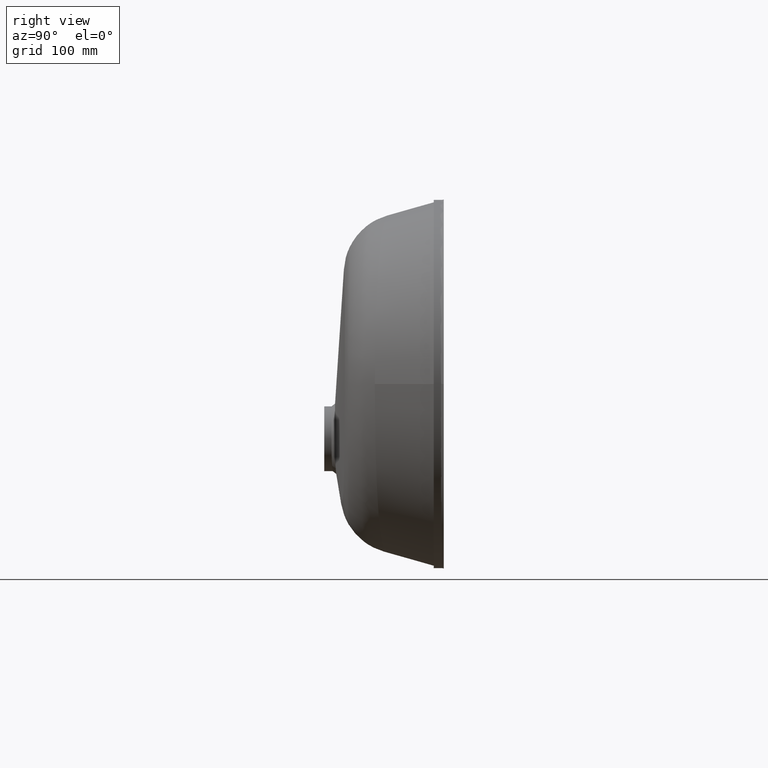
[diagram: clean part render]
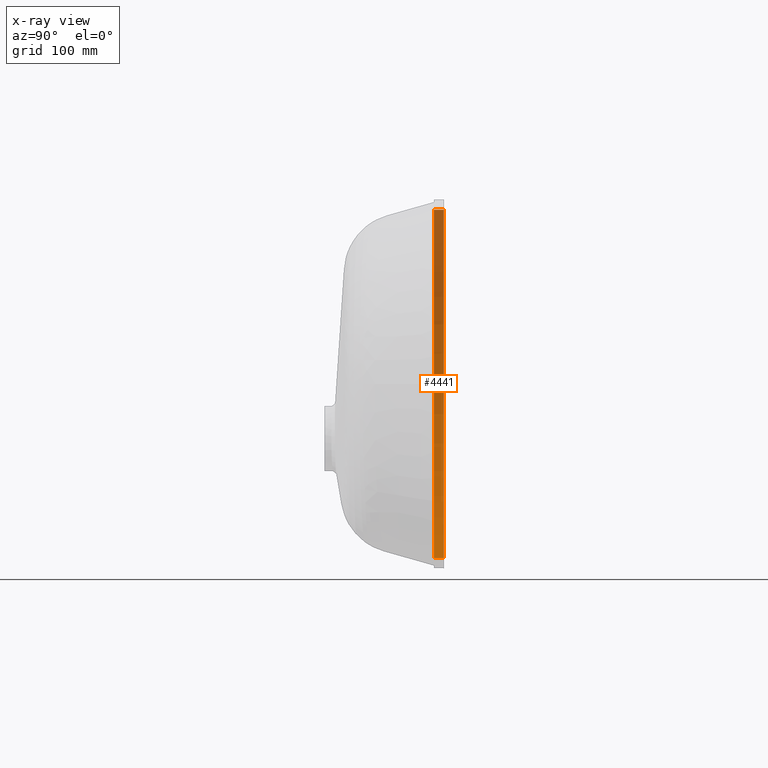
[diagram: x-ray — body ghosted, one internal face saturated and labeled with its STEP entity id]
A machine part, right view, then the same camera in x-ray: the body is ghosted and one INTERNAL B-rep face — a face not visible from any outside direction — is saturated and labeled: STEP entity #4441.
In plain terms, the highlighted cylindrical surface (partial cylindrical patch) has radius 175 mm, axis along (0, 1, 0).
Its self-contained STEP definition (entity closure, byte-faithful):
#1 = AXIS2_PLACEMENT_3D ( 'NONE', #11314, #4884, #12389 ) ;
#814 = ORIENTED_EDGE ( 'NONE', *, *, #9954, .F. ) ;
#1432 = EDGE_CURVE ( 'NONE', #1788, #6149, #4792, .T. ) ;
#1782 = CARTESIAN_POINT ( 'NONE',  ( -125.0000000000000300, -10.00000000000000000, 175.0000000000000300 ) ) ;
#1788 = VERTEX_POINT ( 'NONE', #5051 ) ;
#2682 = AXIS2_PLACEMENT_3D ( 'NONE', #12991, #13044, #5488 ) ;
#2945 = DIRECTION ( 'NONE',  ( 0.0000000000000000000, 1.000000000000000000, 0.0000000000000000000 ) ) ;
#3207 = AXIS2_PLACEMENT_3D ( 'NONE', #9378, #2945, #10452 ) ;
#3337 = CARTESIAN_POINT ( 'NONE',  ( -125.0000000000000300, -10.00000000000000000, 175.0000000000000300 ) ) ;
#3742 = EDGE_CURVE ( 'NONE', #7996, #1788, #12013, .T. ) ;
#4418 = DIRECTION ( 'NONE',  ( 0.0000000000000000000, 1.000000000000000000, 0.0000000000000000000 ) ) ;
#4441 = ADVANCED_FACE ( 'NONE', ( #8466 ), #13837, .F. ) ;
#4792 = CIRCLE ( 'NONE', #3207, 175.0000000000000300 ) ;
#4884 = DIRECTION ( 'NONE',  ( 0.0000000000000000000, 1.000000000000000000, 0.0000000000000000000 ) ) ;
#5051 = CARTESIAN_POINT ( 'NONE',  ( -125.0000000000000300, 0.0000000000000000000, -175.0000000000000300 ) ) ;
#5261 = CARTESIAN_POINT ( 'NONE',  ( -125.0000000000000300, -10.00000000000000000, -175.0000000000000300 ) ) ;
#5488 = DIRECTION ( 'NONE',  ( 0.0000000000000000000, 0.0000000000000000000, 1.000000000000000000 ) ) ;
#5979 = VECTOR ( 'NONE', #4418, 1000.000000000000000 ) ;
#6149 = VERTEX_POINT ( 'NONE', #11236 ) ;
#6312 = LINE ( 'NONE', #3337, #5979 ) ;
#6838 = CARTESIAN_POINT ( 'NONE',  ( -125.0000000000000300, -10.00000000000000000, -175.0000000000000300 ) ) ;
#7911 = DIRECTION ( 'NONE',  ( 0.0000000000000000000, 1.000000000000000000, 0.0000000000000000000 ) ) ;
#7996 = VERTEX_POINT ( 'NONE', #5261 ) ;
#8413 = EDGE_CURVE ( 'NONE', #11393, #6149, #6312, .T. ) ;
#8466 = FACE_OUTER_BOUND ( 'NONE', #8775, .T. ) ;
#8775 = EDGE_LOOP ( 'NONE', ( #10339, #13534, #814, #9173 ) ) ;
#9173 = ORIENTED_EDGE ( 'NONE', *, *, #3742, .T. ) ;
#9378 = CARTESIAN_POINT ( 'NONE',  ( -125.0000000000000300, 0.0000000000000000000, -1.244749062628699500E-014 ) ) ;
#9954 = EDGE_CURVE ( 'NONE', #7996, #11393, #13211, .T. ) ;
#10339 = ORIENTED_EDGE ( 'NONE', *, *, #1432, .T. ) ;
#10452 = DIRECTION ( 'NONE',  ( 0.0000000000000000000, 0.0000000000000000000, 1.000000000000000000 ) ) ;
#11236 = CARTESIAN_POINT ( 'NONE',  ( -125.0000000000000300, 0.0000000000000000000, 175.0000000000000300 ) ) ;
#11314 = CARTESIAN_POINT ( 'NONE',  ( -125.0000000000000300, -10.00000000000000000, -1.244749062628699500E-014 ) ) ;
#11393 = VERTEX_POINT ( 'NONE', #1782 ) ;
#11667 = VECTOR ( 'NONE', #7911, 1000.000000000000000 ) ;
#12013 = LINE ( 'NONE', #6838, #11667 ) ;
#12389 = DIRECTION ( 'NONE',  ( 0.0000000000000000000, 0.0000000000000000000, 1.000000000000000000 ) ) ;
#12991 = CARTESIAN_POINT ( 'NONE',  ( -125.0000000000000300, -10.00000000000000000, -1.244749062628699500E-014 ) ) ;
#13044 = DIRECTION ( 'NONE',  ( 0.0000000000000000000, 1.000000000000000000, 0.0000000000000000000 ) ) ;
#13211 = CIRCLE ( 'NONE', #1, 175.0000000000000300 ) ;
#13534 = ORIENTED_EDGE ( 'NONE', *, *, #8413, .F. ) ;
#13837 = CYLINDRICAL_SURFACE ( 'NONE', #2682, 175.0000000000000300 ) ;